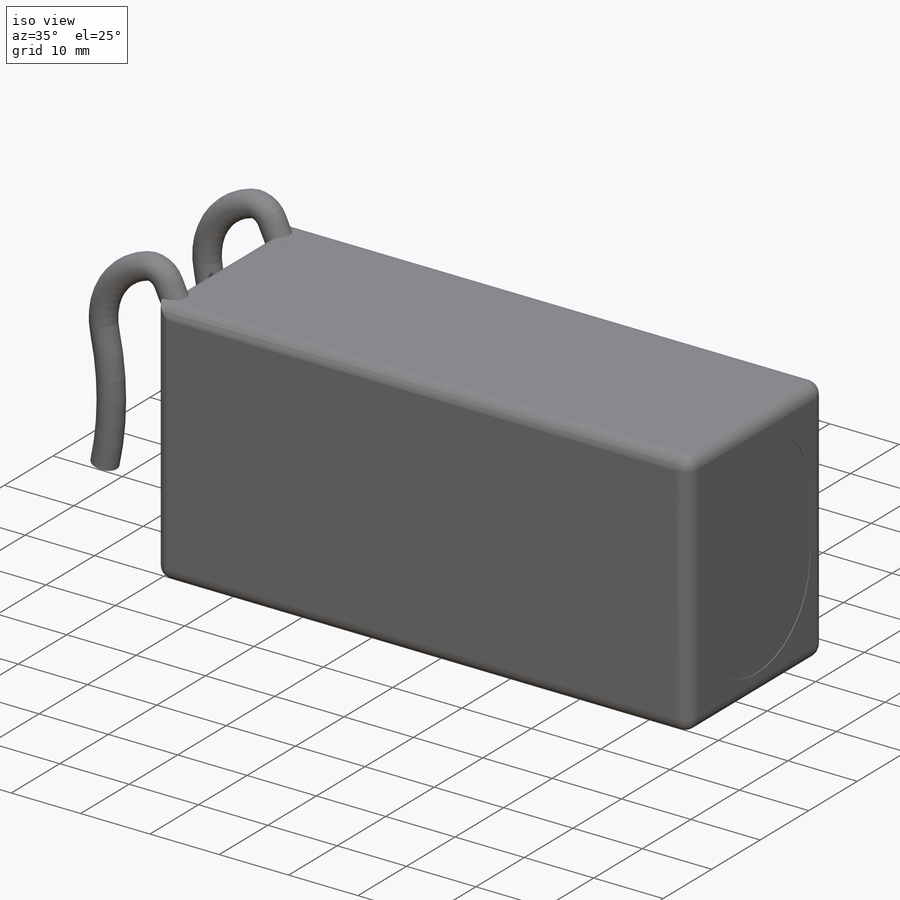
[diagram: iso view]
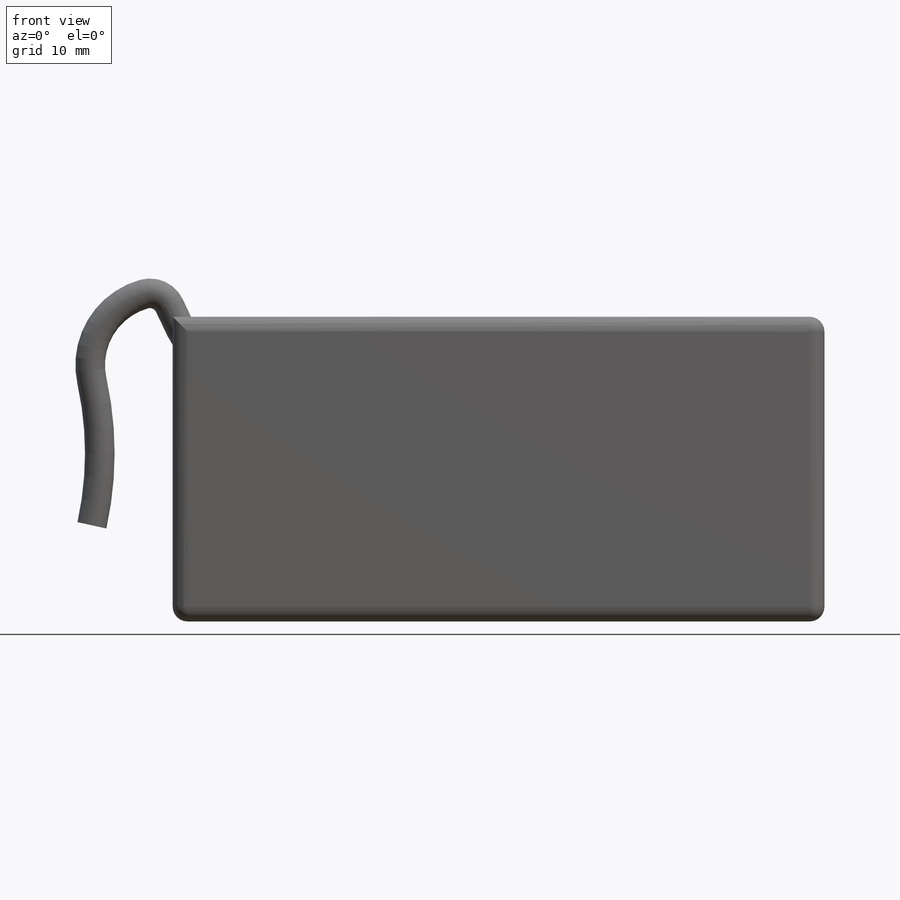
[diagram: front view]
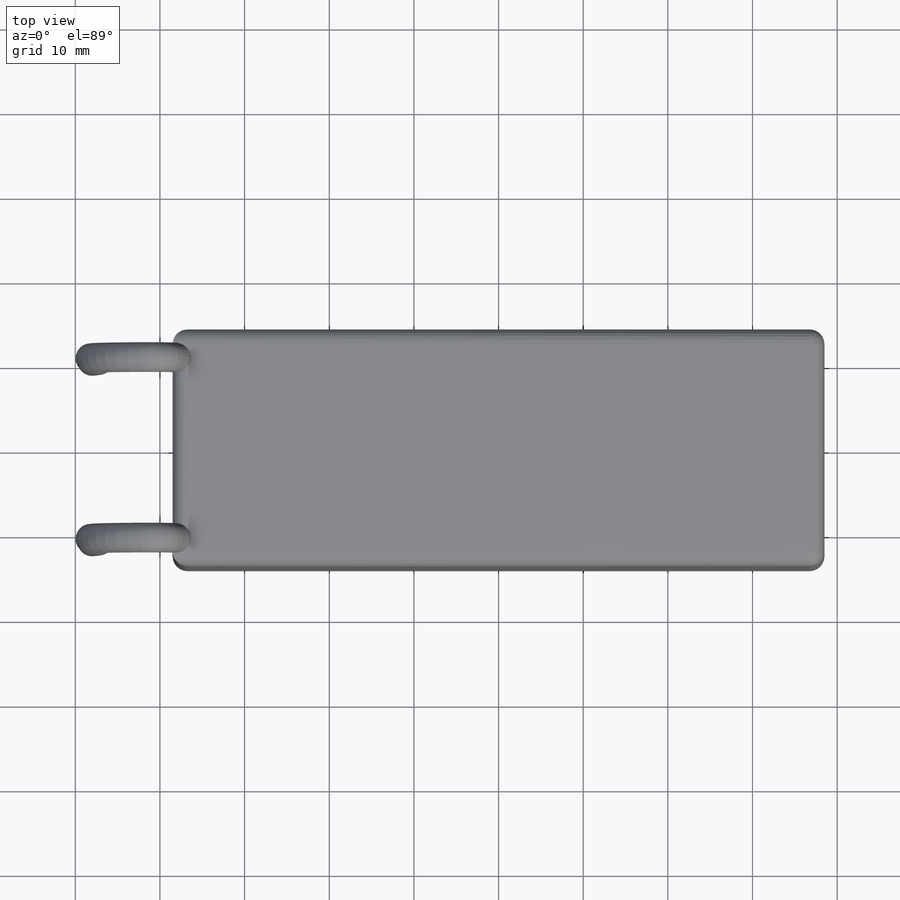
[diagram: top view]
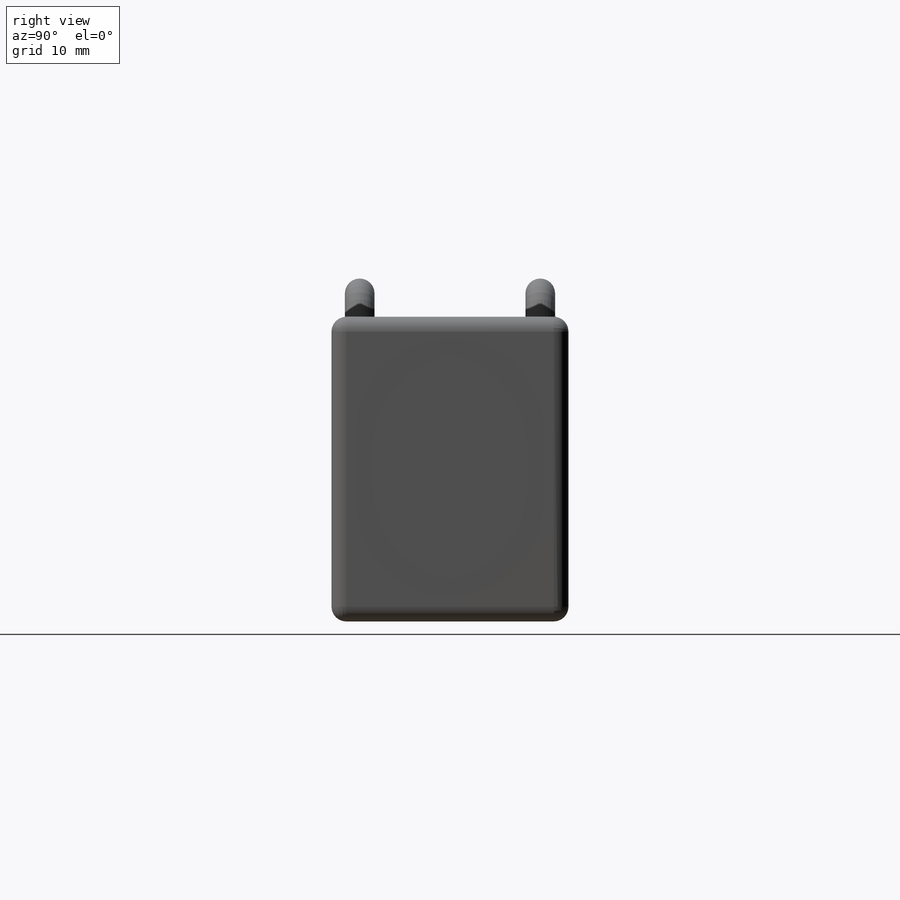
[diagram: right view]
SOLIDWORKS PART (.sldprt)
format: sldprt  version: not decoded by parser v0  size: 417,280 bytes
history: native  units: mm
features: sketch x4, mirror x2, fillet x2, material x1, extrude x1, sweep x1, cut_extrude x1 (+12 scaffold rows collapsed)
feature tree (24):
  scaffold x12  (default folders/planes/origin — collapsed)
  material  "Material <not specified>"
  sketch  "Sketch1"  dims[D1=28.0mm D2=77.0mm]
  extrude  "Boss-Extrude1"  Depth=36mm
  sketch  "Sketch2"  dims[D1=3.5mm]
  sketch  "Sketch3"
  sweep  "Sweep1"
  mirror  "Mirror1"
  fillet  "Fillet1"  Radius=1.75mm
  sketch  "Sketch4"
  cut_extrude  "Cut-Extrude1"  Depth=0.1mm
  mirror  "Mirror2"
  fillet  "Fillet2"  Radius=1.75mm
decode coverage: 6 of 11 modeling features carry decoded parameters
note: suppression state not decoded; provenance and decode notes live in map.json
